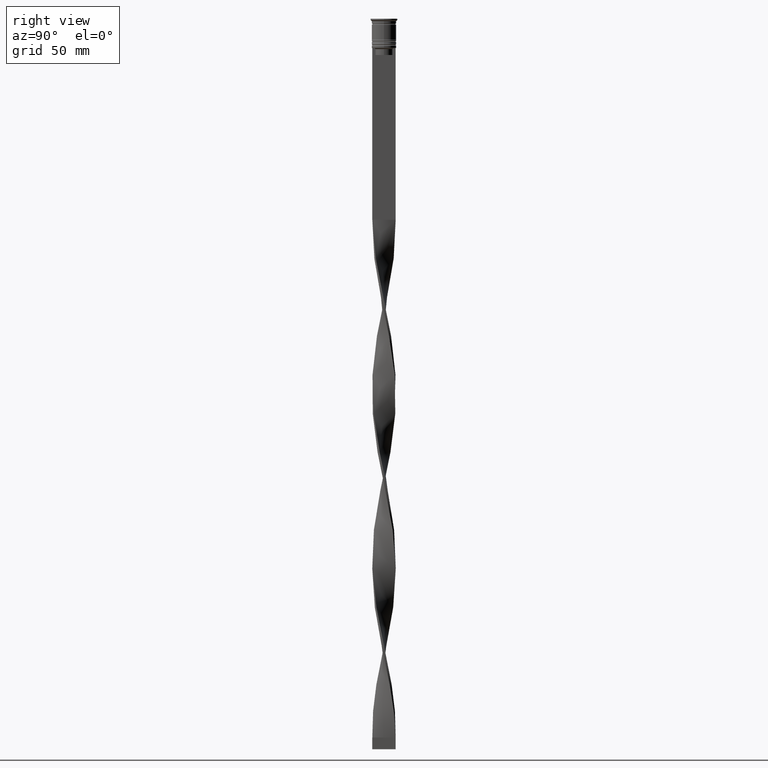
[diagram: clean part render]
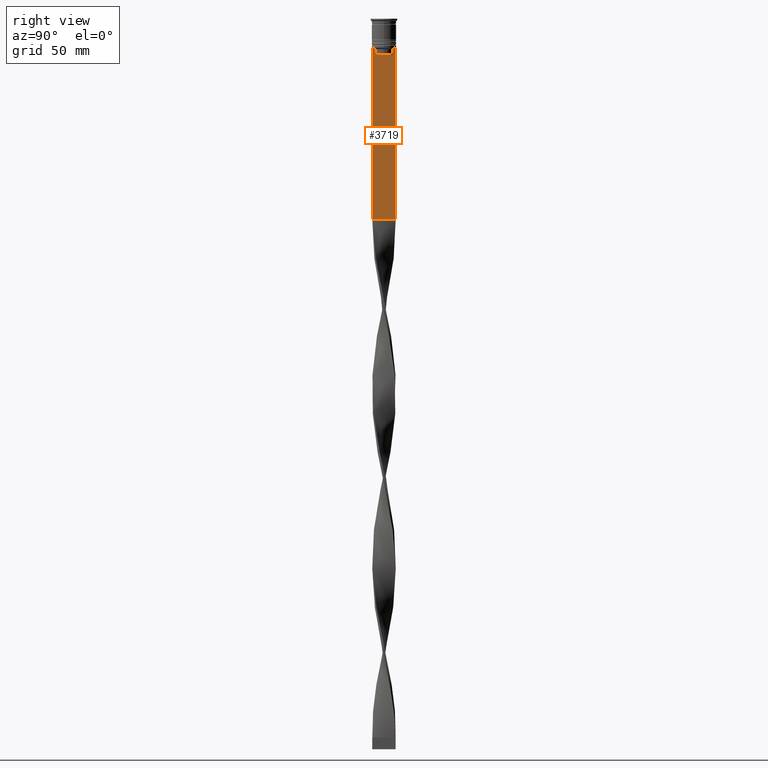
[diagram: same view with one face highlighted and labeled with its STEP entity id]
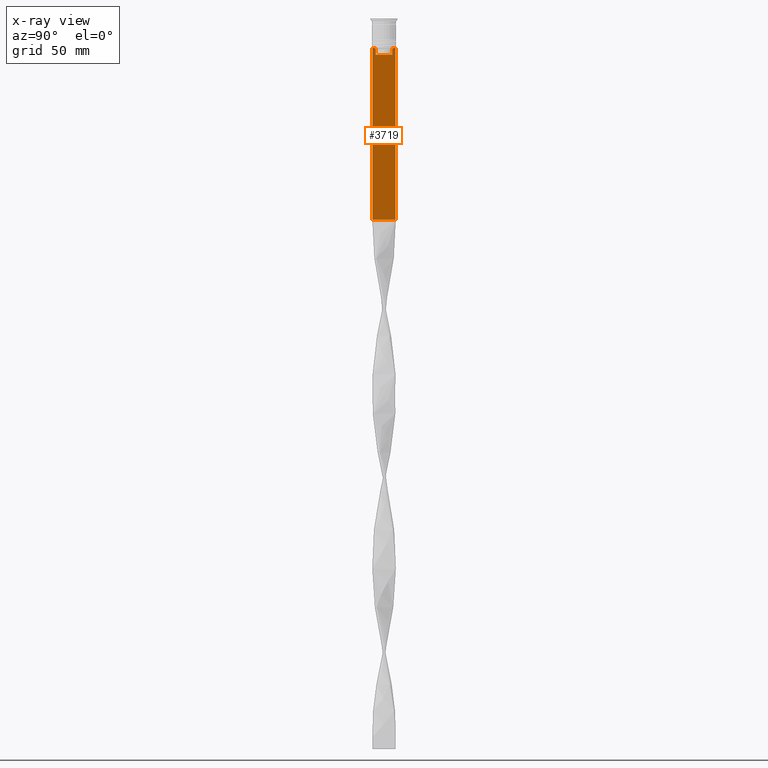
[diagram: x-ray of the same camera — body ghosted, the highlighted face saturated]
A machine part, right view. The second image highlights one B-rep face of the part: STEP entity #3719.
The next image is the same camera in x-ray: the body ghosted, the highlighted face saturated — about 0% of this face is hidden behind the body in this view.
In plain terms, the highlighted planar face has unit normal (-1, 0, 0).
Its self-contained STEP definition (entity closure, byte-faithful):
#24 = EDGE_CURVE ( 'NONE', #1629, #272, #1799, .T. ) ;
#223 = CARTESIAN_POINT ( 'NONE',  ( 0.5000000000000000000, 4.119769411022908834, -12.50000000000000000 ) ) ;
#256 = LINE ( 'NONE', #1447, #2318 ) ;
#272 = VERTEX_POINT ( 'NONE', #3625 ) ;
#384 = LINE ( 'NONE', #1614, #528 ) ;
#430 = ORIENTED_EDGE ( 'NONE', *, *, #3245, .T. ) ;
#528 = VECTOR ( 'NONE', #2847, 1000.000000000000000 ) ;
#569 = VERTEX_POINT ( 'NONE', #2594 ) ;
#633 = ORIENTED_EDGE ( 'NONE', *, *, #873, .T. ) ;
#735 = VERTEX_POINT ( 'NONE', #2363 ) ;
#873 = EDGE_CURVE ( 'NONE', #272, #2195, #384, .T. ) ;
#888 = CARTESIAN_POINT ( 'NONE',  ( 0.5000000000000000000, -3.615591237958188486, -15.50000000000000000 ) ) ;
#902 = DIRECTION ( 'NONE',  ( 0.000000000000000000, 0.000000000000000000, -1.000000000000000000 ) ) ;
#916 = VECTOR ( 'NONE', #3228, 1000.000000000000000 ) ;
#921 = EDGE_CURVE ( 'NONE', #569, #2094, #2286, .T. ) ;
#931 = ORIENTED_EDGE ( 'NONE', *, *, #1366, .T. ) ;
#935 = LINE ( 'NONE', #2756, #2313 ) ;
#938 = VERTEX_POINT ( 'NONE', #888 ) ;
#943 = CARTESIAN_POINT ( 'NONE',  ( 0.5000000000000000000, -4.999999999999999112, -2.450124378879110054 ) ) ;
#1051 = CARTESIAN_POINT ( 'NONE',  ( 0.5000000000000000000, -4.999999999999999112, -86.00000000000000000 ) ) ;
#1070 = CARTESIAN_POINT ( 'NONE',  ( 0.5000000000000000000, 3.615591237958188042, -13.00000000000000178 ) ) ;
#1139 = DIRECTION ( 'NONE',  ( -1.000000000000000000, 0.000000000000000000, 0.000000000000000000 ) ) ;
#1195 = ORIENTED_EDGE ( 'NONE', *, *, #2488, .T. ) ;
#1215 = CARTESIAN_POINT ( 'NONE',  ( 0.5000000000000000000, 3.650000000000003464, -15.50000000000000000 ) ) ;
#1240 = VERTEX_POINT ( 'NONE', #2530 ) ;
#1338 = LINE ( 'NONE', #1051, #2906 ) ;
#1366 = EDGE_CURVE ( 'NONE', #569, #1629, #2406, .T. ) ;
#1377 = CARTESIAN_POINT ( 'NONE',  ( 0.5000000000000000000, 5.000000000000000888, -2.450124378879110054 ) ) ;
#1421 = ORIENTED_EDGE ( 'NONE', *, *, #921, .F. ) ;
#1447 = CARTESIAN_POINT ( 'NONE',  ( 0.5000000000000000000, -3.615591237958188042, 0.000000000000000000 ) ) ;
#1453 = CARTESIAN_POINT ( 'NONE',  ( 0.5000000000000000000, 3.783746449387932476, -12.83342999751715752 ) ) ;
#1459 = CARTESIAN_POINT ( 'NONE',  ( 0.5000000000000000000, -4.999999999999999112, -12.50000000000000000 ) ) ;
#1562 = FACE_OUTER_BOUND ( 'NONE', #2979, .T. ) ;
#1587 = ORIENTED_EDGE ( 'NONE', *, *, #24, .T. ) ;
#1614 = CARTESIAN_POINT ( 'NONE',  ( 0.5000000000000000000, 3.615591237958188042, 0.000000000000000000 ) ) ;
#1629 = VERTEX_POINT ( 'NONE', #223 ) ;
#1746 = PLANE ( 'NONE',  #3832 ) ;
#1752 = CARTESIAN_POINT ( 'NONE',  ( 0.5000000000000000000, 3.615591237958188486, -15.50000000000000000 ) ) ;
#1758 = ORIENTED_EDGE ( 'NONE', *, *, #3673, .T. ) ;
#1799 = B_SPLINE_CURVE_WITH_KNOTS ( 'NONE', 3,
 ( #3554, #2049, #1453, #1070 ),
 .UNSPECIFIED., .F., .F.,
 ( 4, 4 ),
 ( 0.007067514914986626831, 0.007777582239375525376 ),
 .UNSPECIFIED. ) ;
#1834 = CARTESIAN_POINT ( 'NONE',  ( 0.5000000000000000000, -3.783746406711539390, -12.83343003979123509 ) ) ;
#1948 = ORIENTED_EDGE ( 'NONE', *, *, #3481, .T. ) ;
#2049 = CARTESIAN_POINT ( 'NONE',  ( 0.5000000000000000000, 3.951794205566887985, -12.66675159355373737 ) ) ;
#2053 = CARTESIAN_POINT ( 'NONE',  ( 0.5000000000000000000, -4.999999999999999112, -86.00000000000000000 ) ) ;
#2089 = EDGE_CURVE ( 'NONE', #1240, #2726, #2219, .T. ) ;
#2094 = VERTEX_POINT ( 'NONE', #3125 ) ;
#2148 = CARTESIAN_POINT ( 'NONE',  ( 0.5000000000000000000, -3.951794168112527927, -12.66675163073525923 ) ) ;
#2195 = VERTEX_POINT ( 'NONE', #1752 ) ;
#2219 = LINE ( 'NONE', #2238, #2377 ) ;
#2238 = CARTESIAN_POINT ( 'NONE',  ( 0.5000000000000000000, -4.999999999999999112, -2.450124378879110054 ) ) ;
#2286 = LINE ( 'NONE', #1377, #2584 ) ;
#2313 = VECTOR ( 'NONE', #2457, 1000.000000000000000 ) ;
#2318 = VECTOR ( 'NONE', #2366, 1000.000000000000000 ) ;
#2363 = CARTESIAN_POINT ( 'NONE',  ( 0.5000000000000000000, -3.615591237958188042, -13.00000000000000178 ) ) ;
#2366 = DIRECTION ( 'NONE',  ( -0.000000000000000000, -0.000000000000000000, 1.000000000000000000 ) ) ;
#2377 = VECTOR ( 'NONE', #3414, 1000.000000000000000 ) ;
#2406 = LINE ( 'NONE', #1459, #3699 ) ;
#2457 = DIRECTION ( 'NONE',  ( 0.000000000000000000, -1.000000000000000000, 0.000000000000000000 ) ) ;
#2474 = CARTESIAN_POINT ( 'NONE',  ( 0.5000000000000000000, -3.615591237958188042, -13.00000000000000178 ) ) ;
#2488 = EDGE_CURVE ( 'NONE', #3242, #1240, #935, .T. ) ;
#2530 = CARTESIAN_POINT ( 'NONE',  ( 0.5000000000000000000, -4.999999999999999112, -12.50000000000000000 ) ) ;
#2584 = VECTOR ( 'NONE', #902, 1000.000000000000000 ) ;
#2594 = CARTESIAN_POINT ( 'NONE',  ( 0.5000000000000000000, 5.000000000000000888, -12.50000000000000000 ) ) ;
#2726 = VERTEX_POINT ( 'NONE', #2053 ) ;
#2756 = CARTESIAN_POINT ( 'NONE',  ( 0.5000000000000000000, -4.999999999999999112, -12.50000000000000000 ) ) ;
#2816 = CARTESIAN_POINT ( 'NONE',  ( 0.5000000000000000000, -4.119769411022908834, -12.50000000000000000 ) ) ;
#2847 = DIRECTION ( 'NONE',  ( 0.000000000000000000, 0.000000000000000000, -1.000000000000000000 ) ) ;
#2906 = VECTOR ( 'NONE', #3748, 1000.000000000000000 ) ;
#2979 = EDGE_LOOP ( 'NONE', ( #931, #1587, #633, #1758, #3945, #430, #1195, #3723, #1948, #1421 ) ) ;
#3118 = EDGE_CURVE ( 'NONE', #938, #735, #256, .T. ) ;
#3125 = CARTESIAN_POINT ( 'NONE',  ( 0.5000000000000000000, 5.000000000000000888, -86.00000000000000000 ) ) ;
#3228 = DIRECTION ( 'NONE',  ( 0.000000000000000000, -1.000000000000000000, 0.000000000000000000 ) ) ;
#3242 = VERTEX_POINT ( 'NONE', #2816 ) ;
#3245 = EDGE_CURVE ( 'NONE', #735, #3242, #3890, .T. ) ;
#3414 = DIRECTION ( 'NONE',  ( 0.000000000000000000, 0.000000000000000000, -1.000000000000000000 ) ) ;
#3481 = EDGE_CURVE ( 'NONE', #2726, #2094, #1338, .T. ) ;
#3545 = LINE ( 'NONE', #1215, #916 ) ;
#3554 = CARTESIAN_POINT ( 'NONE',  ( 0.5000000000000000000, 4.119769411022908834, -12.50000000000000000 ) ) ;
#3605 = DIRECTION ( 'NONE',  ( 0.000000000000000000, -1.000000000000000000, 0.000000000000000000 ) ) ;
#3625 = CARTESIAN_POINT ( 'NONE',  ( 0.5000000000000000000, 3.615591237958188042, -13.00000000000000178 ) ) ;
#3671 = CARTESIAN_POINT ( 'NONE',  ( 0.5000000000000000000, -4.119769411022908834, -12.50000000000000000 ) ) ;
#3673 = EDGE_CURVE ( 'NONE', #2195, #938, #3545, .T. ) ;
#3699 = VECTOR ( 'NONE', #3605, 1000.000000000000000 ) ;
#3719 = ADVANCED_FACE ( 'NONE', ( #1562 ), #1746, .F. ) ;
#3723 = ORIENTED_EDGE ( 'NONE', *, *, #2089, .T. ) ;
#3748 = DIRECTION ( 'NONE',  ( 0.000000000000000000, 1.000000000000000000, 0.000000000000000000 ) ) ;
#3832 = AXIS2_PLACEMENT_3D ( 'NONE', #943, #1139, #3845 ) ;
#3845 = DIRECTION ( 'NONE',  ( 0.000000000000000000, 0.000000000000000000, 1.000000000000000000 ) ) ;
#3890 = B_SPLINE_CURVE_WITH_KNOTS ( 'NONE', 3,
 ( #2474, #1834, #2148, #3671 ),
 .UNSPECIFIED., .F., .F.,
 ( 4, 4 ),
 ( 0.01745179617248910492, 0.01816207215777258452 ),
 .UNSPECIFIED. ) ;
#3945 = ORIENTED_EDGE ( 'NONE', *, *, #3118, .T. ) ;